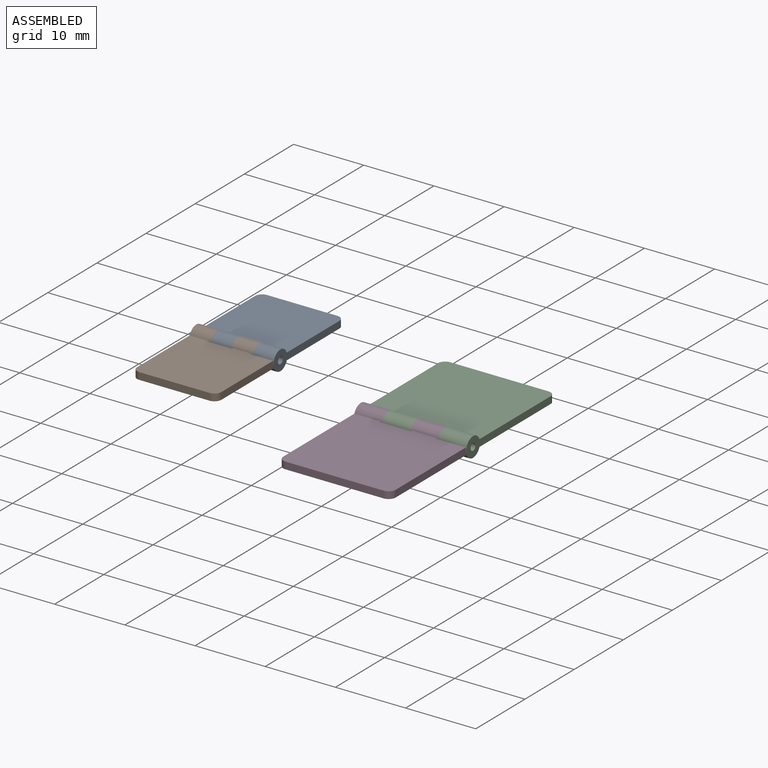
[diagram: assembled view]
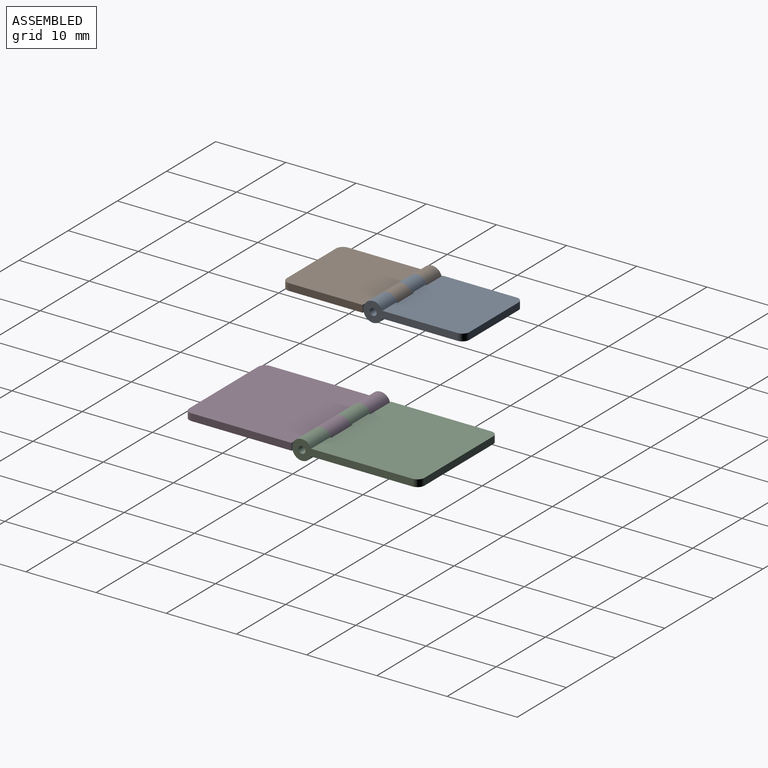
[diagram: assembled view, second angle]
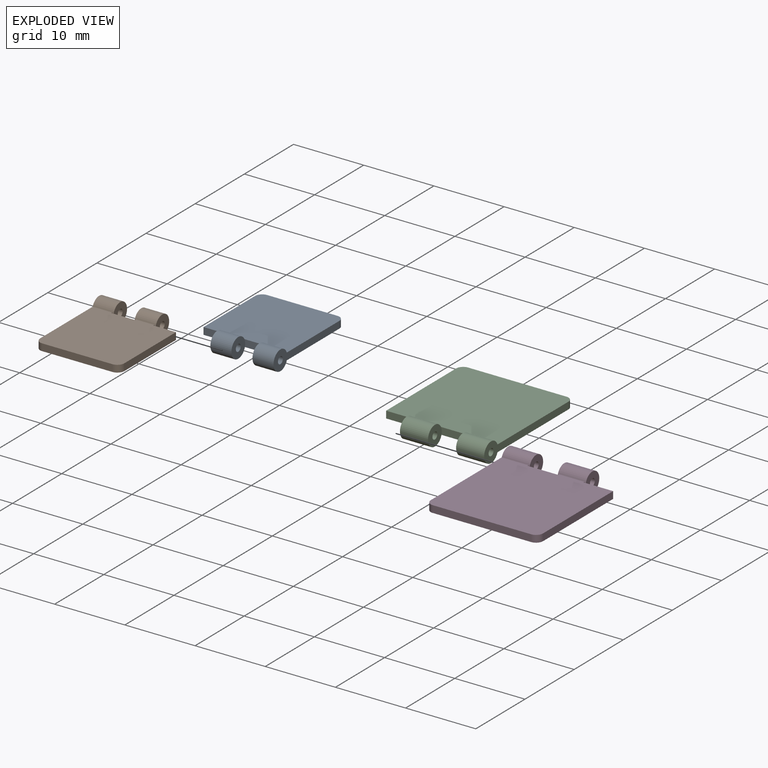
[diagram: exploded view]
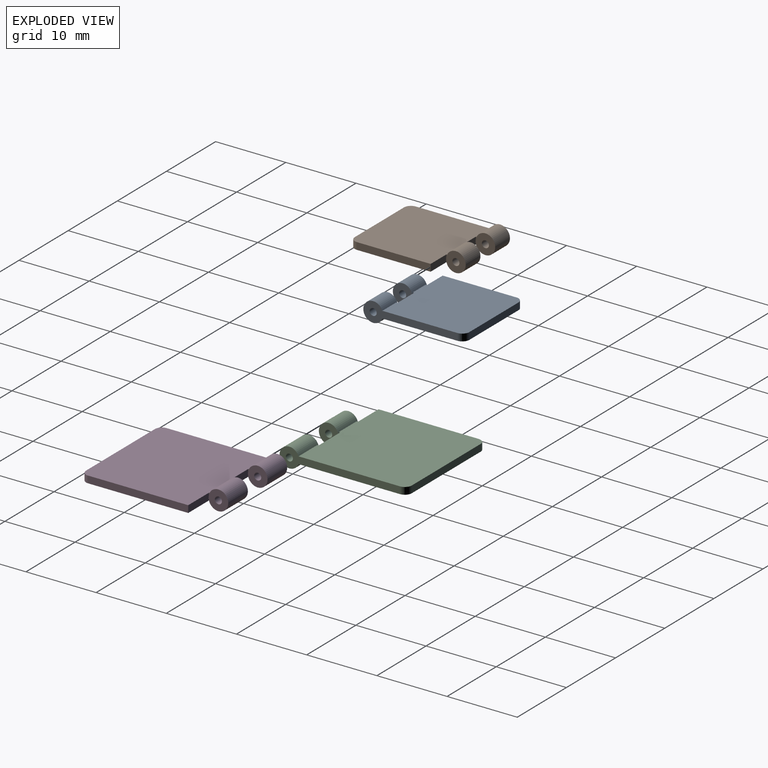
[diagram: exploded view, second angle]
ASSEMBLY  parts=4 mates=2
PART A: 19 faces, bbox 12x14.4x2.8 mm
  f0: plane 12x11.69mm, normal (0,0,1), area 138.6mm2, adj f2,f3,f4,f5,f6,f7,f8,f9
  f1: plane 12x11.69mm, normal (0,0,-1), area 138.6mm2, adj f2,f3,f4,f5,f6,f7,f8,f9
  f2: plane 1x0.19mm, normal (-1,0,0), area 0.1mm2, adj f0,f1,f11,f13
  f3: plane 13.4x2.8mm, normal (1,0,0), area 16mm2, adj f0,f1,f4,f13,f14
  f4: cylinder r=1mm len=1mm, axis (0,0,-1), area 1.6mm2, adj f0,f1,f3,f5
  f5: plane 10x1mm, normal (0,1,0), area 10mm2, adj f0,f1,f4,f6
  f6: cylinder r=1mm len=1mm, axis (0,0,-1), area 1.6mm2, adj f0,f1,f5,f7
  f7: plane 10.5x1mm, normal (-1,0,0), area 10.5mm2, adj f0,f1,f6,f8
  f8: plane 3.2x1mm, normal (0,-1,0), area 3.2mm2, adj f0,f1,f7,f9
  f9: plane 1x0.19mm, normal (-1,0,0), area 0.1mm2, adj f0,f1,f8,f15
  f10: plane 1x0.19mm, normal (1,0,0), area 0.1mm2, adj f0,f1,f11,f15
  f11: plane 3.4x1mm, normal (0,-1,0), area 3.4mm2, adj f0,f1,f2,f10
  f12: plane 2.8x2.8mm, normal (-1,0,0), area 5.4mm2, adj f13,f14
  f13: cylinder r=1.4mm len=3mm, axis (-1,0,0), area 23.5mm2, adj f0,f1,f2,f3,f12
  f14: cylinder r=0.5mm len=3mm, axis (-1,0,0), area 9.4mm2, adj f3,f12
  f15: cylinder r=1.4mm len=3mm, axis (1,0,0), area 23.7mm2, adj f0,f1,f9,f10,f17,f18
  f16: cylinder r=0.5mm len=3mm, axis (1,0,0), area 9.4mm2, adj f17,f18
  f17: plane 2.8x2.8mm, normal (-1,0,0), area 5.4mm2, adj f15,f16
  f18: plane 2.8x2.8mm, normal (1,0,0), area 5.4mm2, adj f15,f16
PART B: same geometry as A
PART C: 19 faces, bbox 16x18.2x2.8 mm
  f0: plane 16x15.44mm, normal (0,0,1), area 245mm2, adj f2,f3,f4,f5,f6,f7,f8,f9
  f1: plane 16x15.44mm, normal (0,0,-1), area 245mm2, adj f2,f3,f4,f5,f6,f7,f8,f9
  f2: plane 1x0.19mm, normal (-1,0,0), area 0.1mm2, adj f0,f1,f11,f14
  f3: plane 17.15x2.8mm, normal (1,0,0), area 19.8mm2, adj f0,f1,f4,f13,f14
  f4: cylinder r=1mm len=1mm, axis (0,0,-1), area 1.6mm2, adj f0,f1,f3,f5
  f5: plane 14x1mm, normal (0,1,0), area 14mm2, adj f0,f1,f4,f6
  f6: cylinder r=1mm len=1mm, axis (0,0,-1), area 1.6mm2, adj f0,f1,f5,f7
  f7: plane 14.25x1mm, normal (-1,0,0), area 14.2mm2, adj f0,f1,f6,f8
  f8: plane 4.2x1mm, normal (0,-1,0), area 4.2mm2, adj f0,f1,f7,f9
  f9: plane 1x0.19mm, normal (-1,0,0), area 0.1mm2, adj f0,f1,f8,f16
  f10: plane 1x0.19mm, normal (1,0,0), area 0.1mm2, adj f0,f1,f11,f16
  f11: plane 4.4x1mm, normal (0,-1,0), area 4.4mm2, adj f0,f1,f2,f10
  f12: plane 2.8x2.8mm, normal (-1,0,0), area 5.4mm2, adj f13,f14
  f13: cylinder r=0.5mm len=4mm, axis (-1,0,0), area 12.6mm2, adj f3,f12
  f14: cylinder r=1.4mm len=4mm, axis (-1,0,0), area 31.3mm2, adj f0,f1,f2,f3,f12
  f15: plane 2.8x2.8mm, normal (-1,0,0), area 5.4mm2, adj f16,f17
  f16: cylinder r=1.4mm len=4mm, axis (1,0,0), area 31.5mm2, adj f0,f1,f9,f10,f15,f18
  f17: cylinder r=0.5mm len=4mm, axis (1,0,0), area 12.6mm2, adj f15,f18
  f18: plane 2.8x2.8mm, normal (1,0,0), area 5.4mm2, adj f16,f17
PART D: same geometry as C
PLACE A t=(-21.42,-16.33,-14.03)mm
PLACE B rot(axis=(0,0,1),180deg) t=(18.58,-16.33,-14.03)mm
PLACE C t=(-0.23,-10.24,-21.31)mm
PLACE D rot(axis=(0,0,1),180deg) t=(39.77,-10.24,-21.31)mm
MATE revolute D.f14 <-> C.f14  axis (1,0,0) through (15.77,-10.24,-21.31)mm
MATE revolute B.f13 <-> A.f13  axis (1,0,0) through (-4.42,-16.33,-14.03)mm
